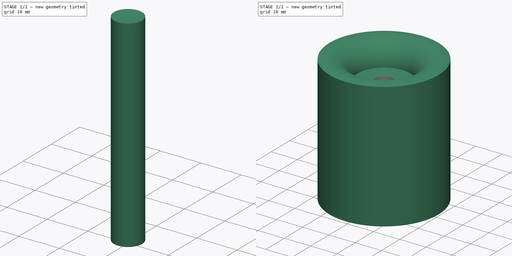
[diagram: build sequence overview — one tinted view per stage of 2, left to right]
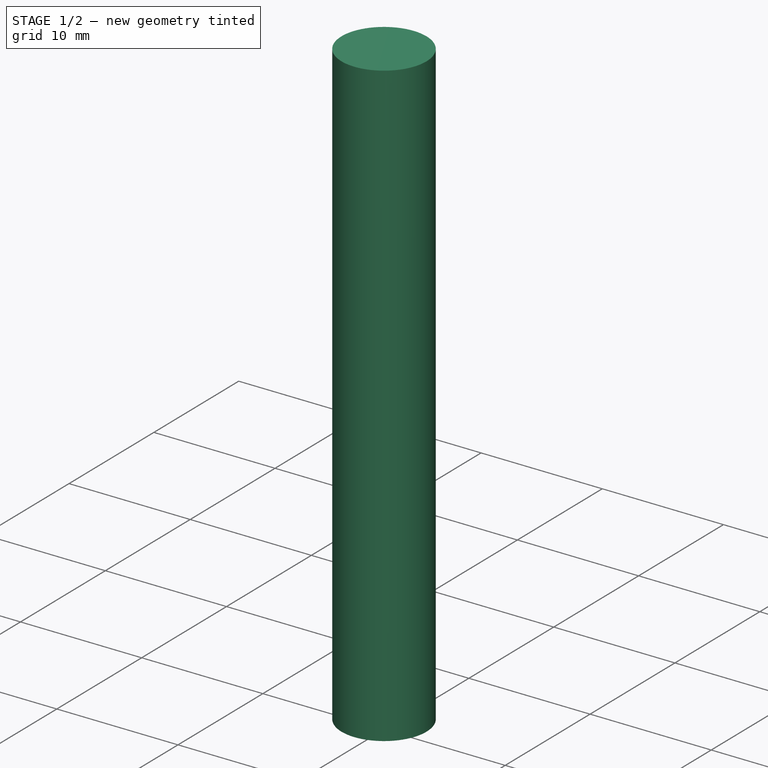
[diagram: stage 1 of 2 — iso view after this stage's code; geometry added in this stage tinted green]
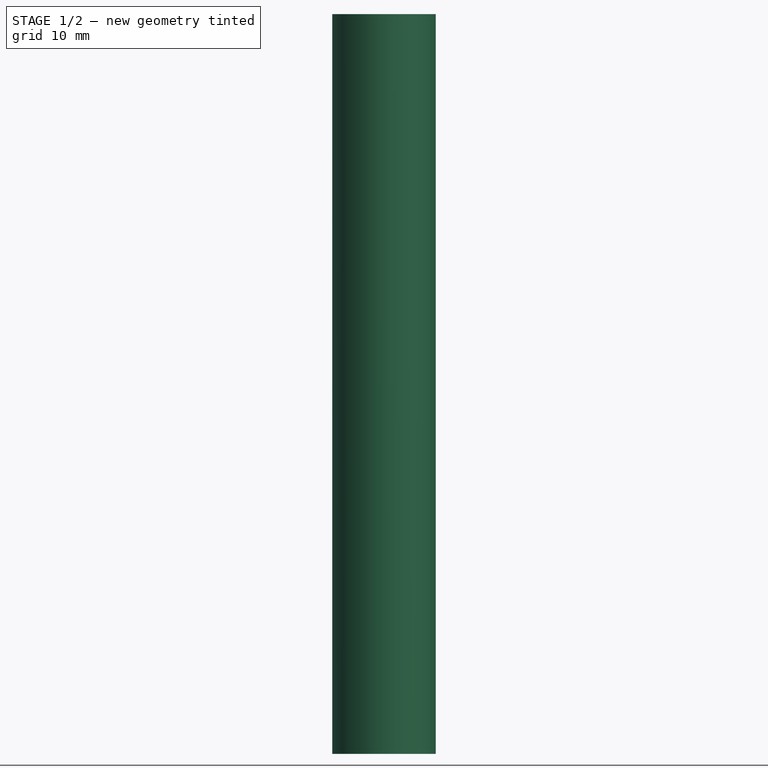
[diagram: stage 1 of 2 — front view after this stage's code; geometry added in this stage tinted green]
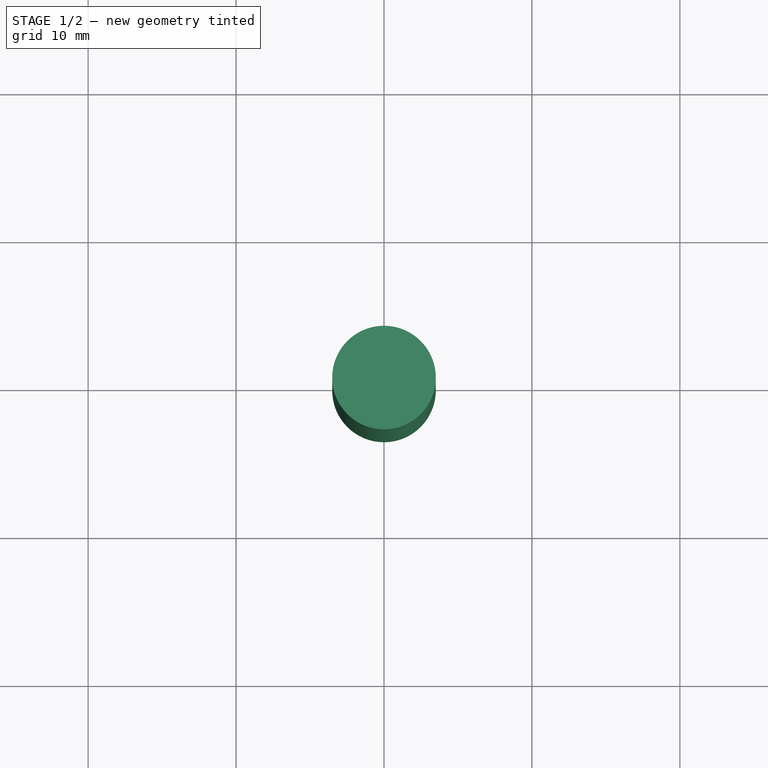
[diagram: stage 1 of 2 — top view after this stage's code; geometry added in this stage tinted green]
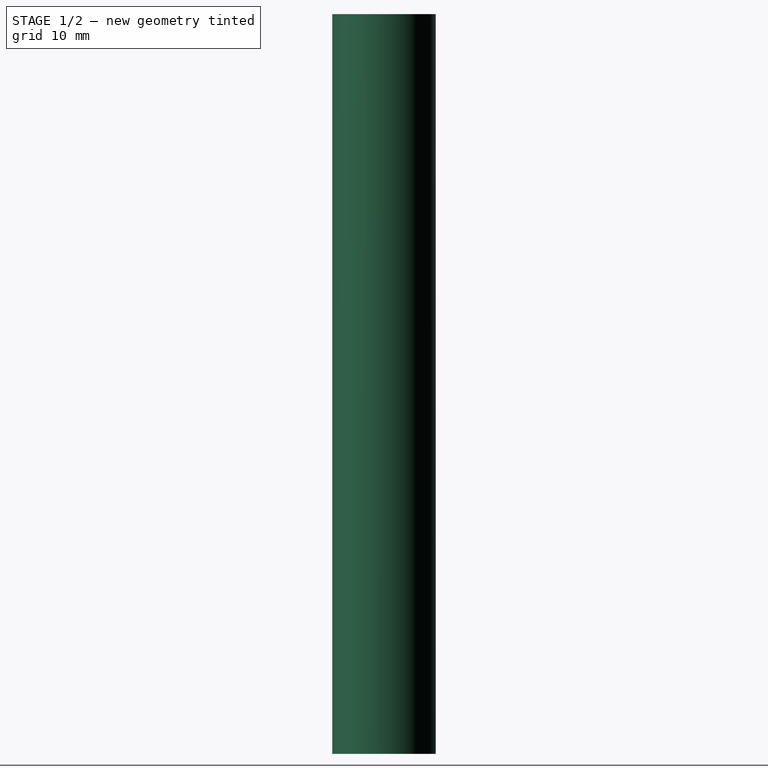
[diagram: stage 1 of 2 — right view after this stage's code; geometry added in this stage tinted green]
FCSTD DOCUMENT  (FreeCAD 1.1R38827 (Git))
Label: prima_jamb
License: All rights reserved
LicenseURL: http://en.wikipedia.org/wiki/All_rights_reserved
objects: Sketcher::SketchObject×1, PartDesign::Revolution×1, Part::Cylinder×1, Part::Compound×1, PartDesign::Boolean×1, PartDesign::CoordinateSystem×1, PartDesign::Body×1
note: 11 computed .brp shape members not serialized (recipe doc carries the construction recipe); baked Part::Feature solids carry a one-line shape summary decoded from their .brp

FEATURE [Part::Cylinder] Cylinder
  Angle = 360
  AttacherType = Attacher::AttachEngine3D
  FirstAngle = 0
  Height = 50
  Radius = 3.5
  SecondAngle = 0
FEATURE [Part::Compound] Compound
  Links = -> [Cylinder]
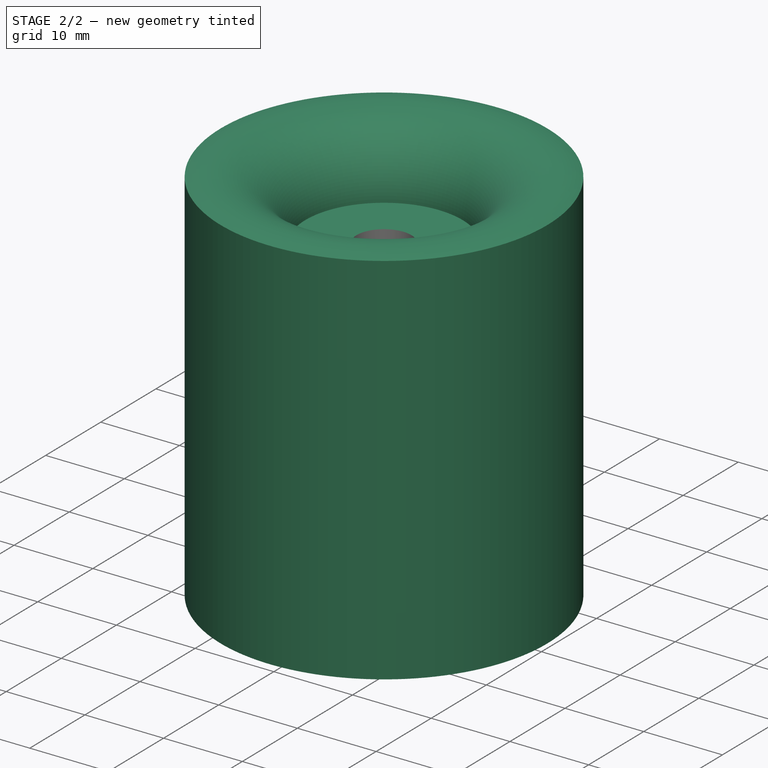
[diagram: stage 2 of 2 — iso view after this stage's code; geometry added in this stage tinted green]
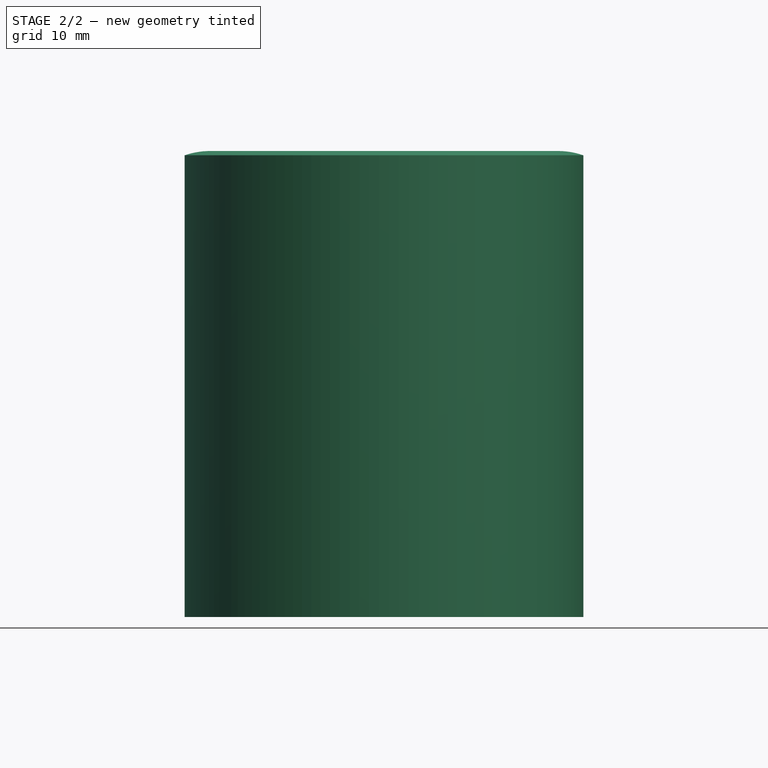
[diagram: stage 2 of 2 — front view after this stage's code; geometry added in this stage tinted green]
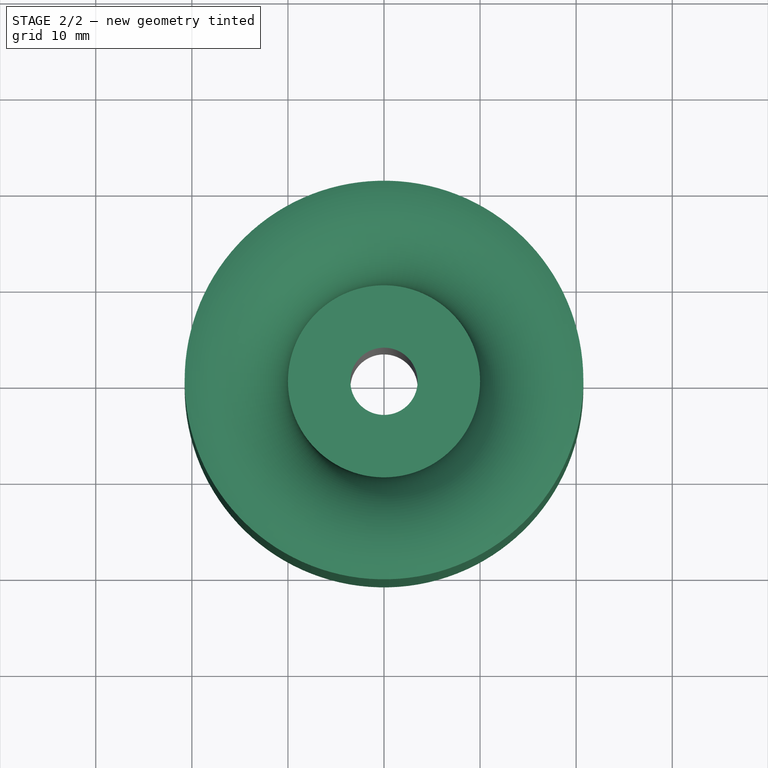
[diagram: stage 2 of 2 — top view after this stage's code; geometry added in this stage tinted green]
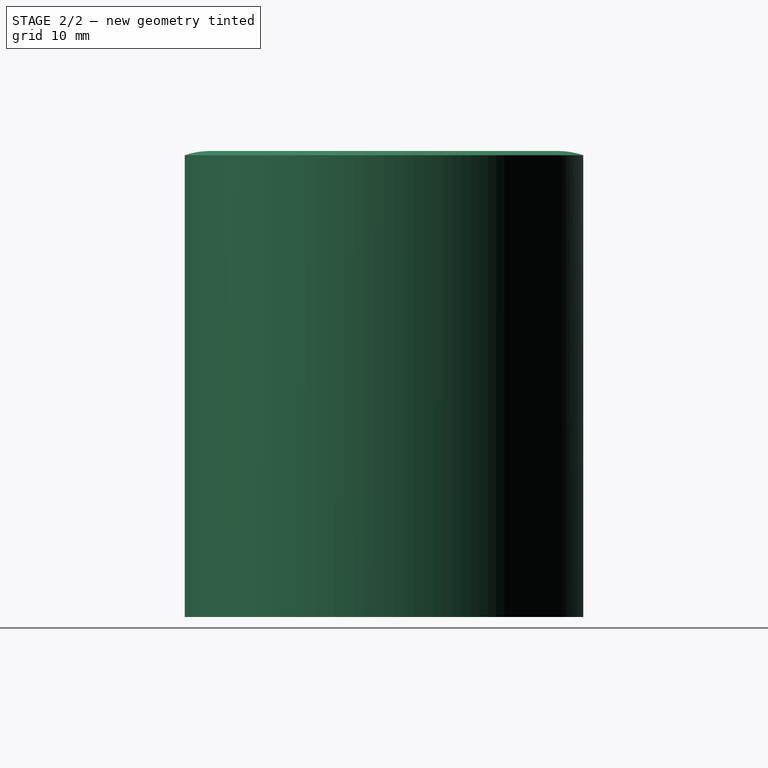
[diagram: stage 2 of 2 — right view after this stage's code; geometry added in this stage tinted green]
FEATURE [Sketcher::SketchObject] Sketch
  ArcFitTolerance = 0
  AttachmentSupport = -> [XZ_Plane]
  FullyConstrained = true
  MakeInternals = false
  MapMode = 5
  Placement = pos=(0,0,0) rot=(1,0,0;1.5708rad)
  sketch-geometry (6):
    g0: LineSegment StartX=0 StartY=0 StartZ=0 EndX=20.75 EndY=0 EndZ=0
    g1: LineSegment StartX=20.75 StartY=0 StartZ=0 EndX=20.75 EndY=48.0542 EndZ=0
    g2: ArcOfCircle CenterX=18.1 CenterY=40.4 CenterZ=0 NormalX=0 NormalY=0 NormalZ=1 AngleXU=0 Radius=8.1 StartAngle=1.2375 EndAngle=3.14159
    g3: LineSegment StartX=0 StartY=0 StartZ=0 EndX=0 EndY=40.4 EndZ=0
    g4: LineSegment StartX=0 StartY=40.4 StartZ=0 EndX=10 EndY=40.4 EndZ=0
    g5: LineSegment [constr] StartX=0 StartY=48.5 StartZ=0 EndX=18.1 EndY=48.5 EndZ=0
  constraints (18):
    c: Coincident(g-1,g0)
    c: PointOnObject(g0,g-1)
    c: Coincident(g0,g1)
    c: Vertical(g1)
    c: Coincident(g0,g3)
    c: PointOnObject(g3,g-2)
    c: Coincident(g3,g4)
    c: Coincident(g4,g2)
    c: Horizontal(g4)
    c: DistanceX(g0) = 20.75
    c: Perpendicular(g2,g4)
    c: DistanceX(g2) = 10
    c: Tangent(g5,g2) = 1.5708
    c: Horizontal(g5)
    c: PointOnObject(g5,g-2)
    c: DistanceY(g3,g5) = 8.1
    c: Coincident(g1,g2)
    c: DistanceY(g5) = 48.5
FEATURE [PartDesign::Revolution] Revolution
  Angle = 360
  Angle2 = 60
  Axis = (0,2e-16,1)
  Base = (0,0,0)
  Placement = pos=(0,0,0) rot=(1,0,0;1.5708rad)
  Profile = -> Sketch
  ReferenceAxis = -> Sketch [V_Axis]
  Reversed = true
  Suppressed = false
  Type = 0
FEATURE [PartDesign::Boolean] Boolean
  BaseFeature = -> Revolution
  Group = -> [Compound]
  Suppressed = false
  Type = 1
  UsePlacement = true
FEATURE [PartDesign::CoordinateSystem] Local_CS
  AttacherType = Attacher::AttachEngine3D
  AttachmentSupport = -> [XY_Plane]
  MapMode = 5
FEATURE [PartDesign::Body] Body  label="prima_jamb"
  AllowCompound = false
  Group = -> [Sketch,Revolution,Boolean,Local_CS]
  Origin = -> Origin
  Tip = -> Boolean
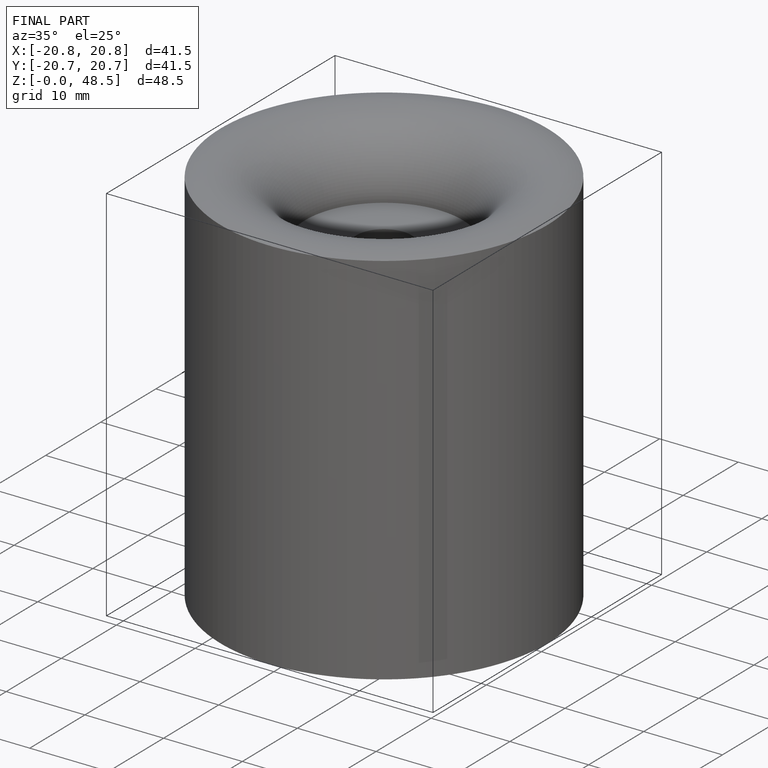
[diagram: finished part — iso view with bounding-box wireframe]
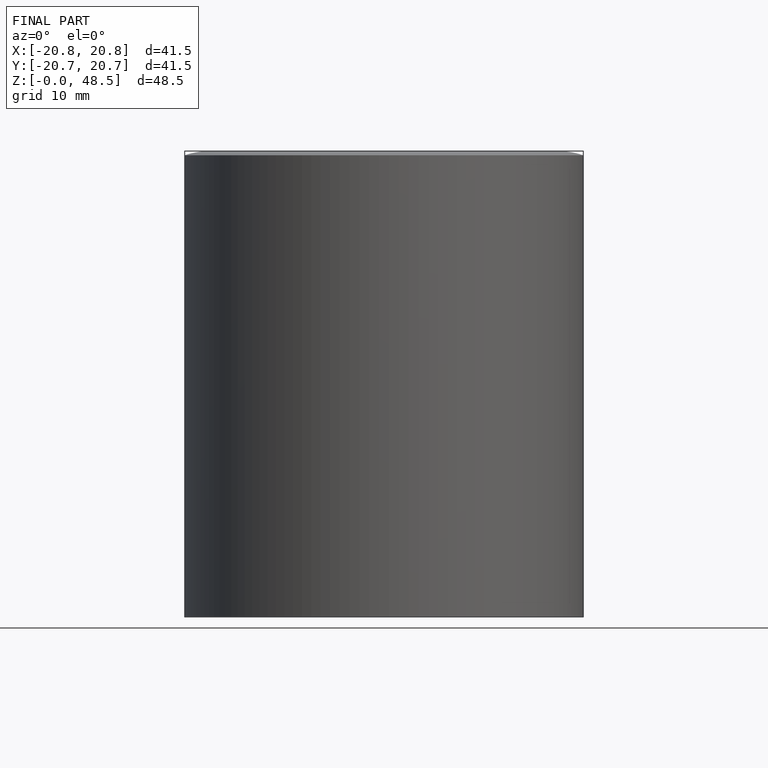
[diagram: finished part — front view with bounding-box wireframe]
